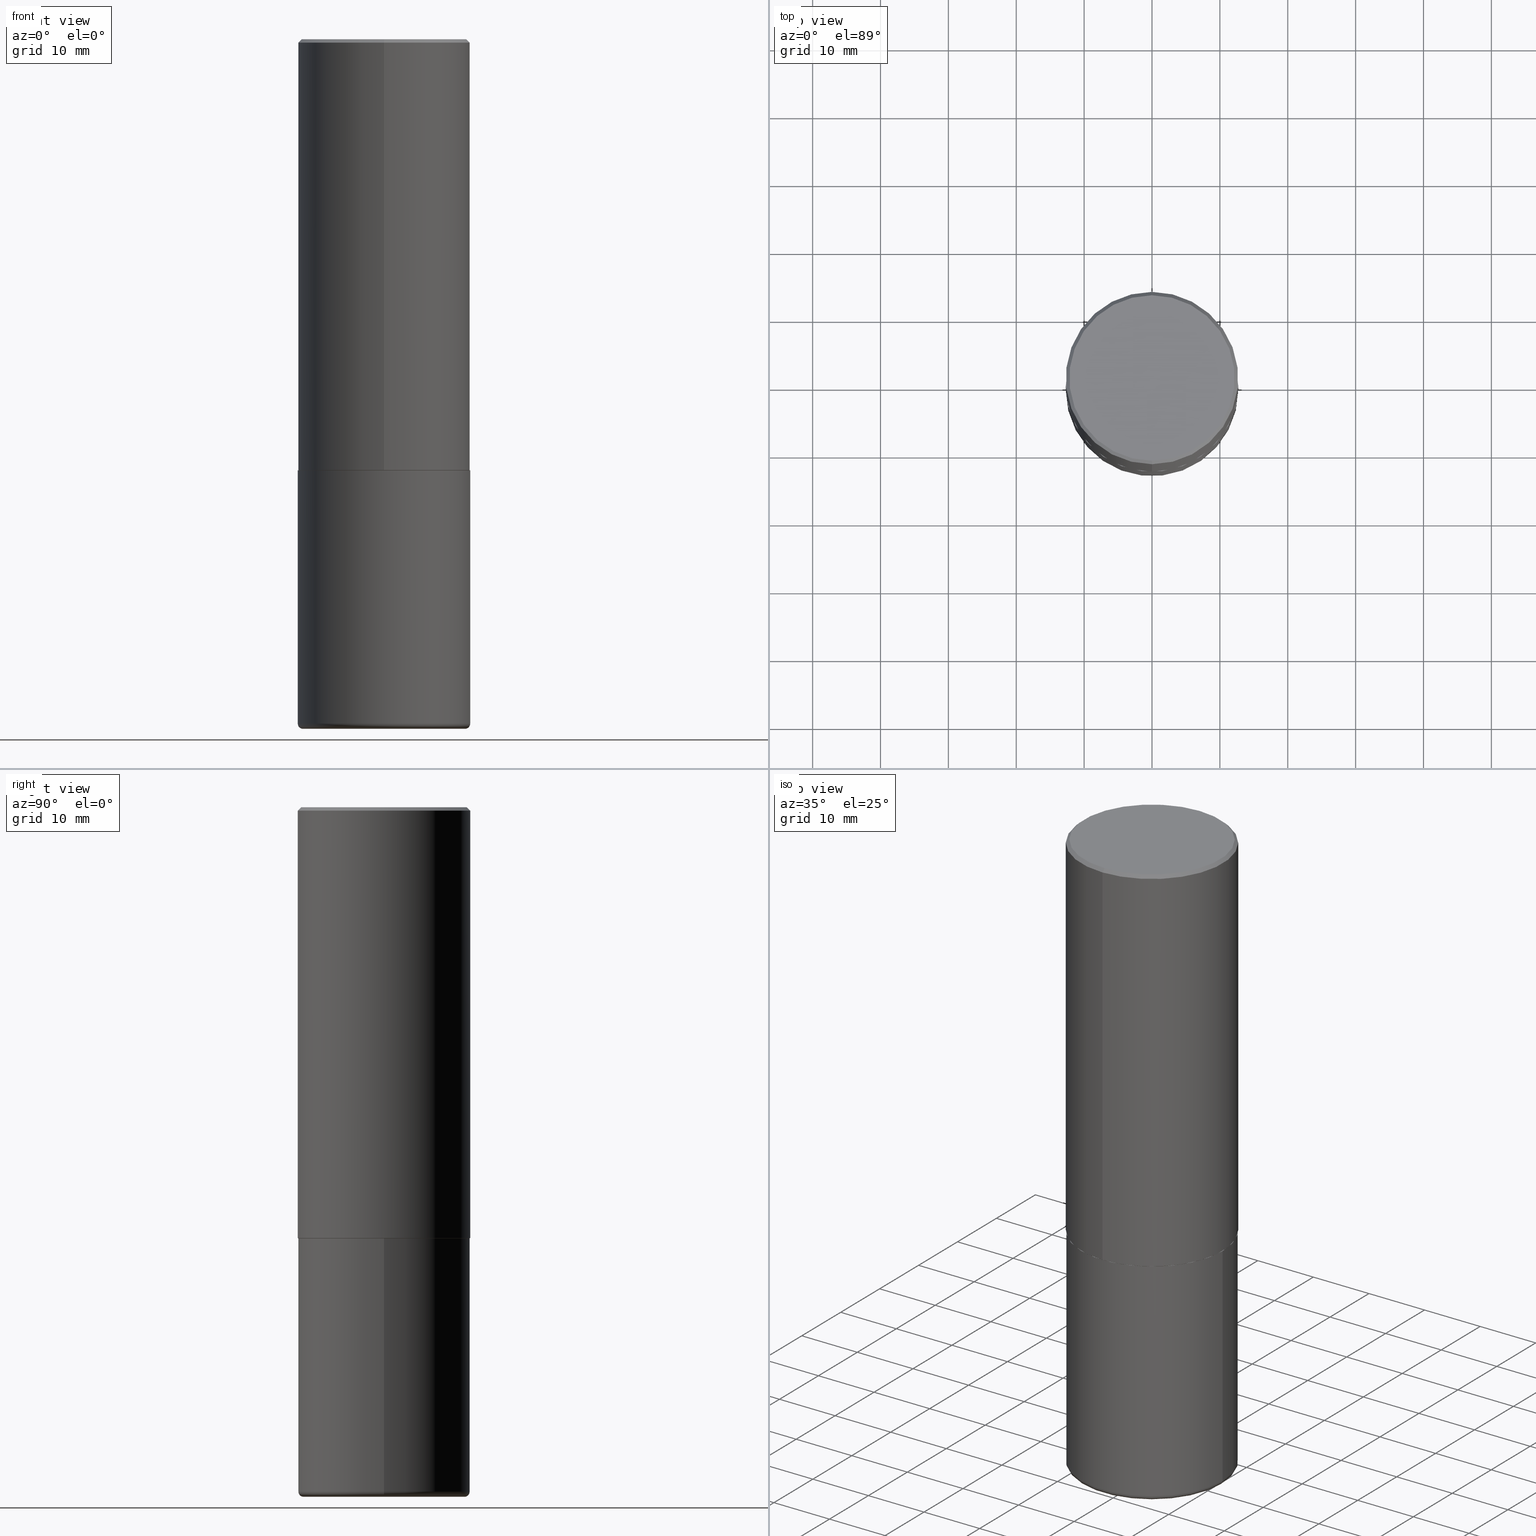
[diagram: canonical four-view strip — front | top / right | iso, engineering-drawing reading convention]
A machine part, canonical four-view strip (front | top / right | iso — engineering-drawing reading convention). The complete STEP part file that produces these views, byte-faithful:
ISO-10303-21;
HEADER;
FILE_DESCRIPTION (( 'STEP AP203' ),
    '1' );
FILE_NAME ('37219.STEP',
    '2024-03-01T22:08:32',
    ( '' ),
    ( '' ),
    'SwSTEP 2.0',
    'SolidWorks 2023',
    '' );
FILE_SCHEMA (( 'CONFIG_CONTROL_DESIGN' ));
ENDSEC;

DATA;
#1 = FACE_OUTER_BOUND ( 'NONE', #262, .T. ) ;
#2 = APPROVAL ( #285, 'UNSPECIFIED' ) ;
#3 = ORIENTED_EDGE ( 'NONE', *, *, #368, .F. ) ;
#4 = AXIS2_PLACEMENT_3D ( 'NONE', #40, #395, #136 ) ;
#5 = ORIENTED_EDGE ( 'NONE', *, *, #291, .T. ) ;
#6 = DIRECTION ( 'NONE',  ( -2.444946167972934928E-29, 3.492229786509738161E-15, 1.000000000000000000 ) ) ;
#7 = EDGE_CURVE ( 'NONE', #353, #360, #135, .T. ) ;
#8 = CARTESIAN_POINT ( 'NONE',  ( 6.109920473764365540E-29, -8.727082236487837614E-15, -2.499000000000000110 ) ) ;
#9 = FACE_OUTER_BOUND ( 'NONE', #218, .T. ) ;
#10 = DIRECTION ( 'NONE',  ( -2.445468806185136597E-29, 3.491481338843145583E-15, 1.000000000000000000 ) ) ;
#11 = DIRECTION ( 'NONE',  ( -2.444946167972934928E-29, 3.492229786509738161E-15, 1.000000000000000000 ) ) ;
#12 = CARTESIAN_POINT ( 'NONE',  ( -0.5000000000000000000, -1.030846723640678645E-14, -3.970000000000000195 ) ) ;
#13 = DIRECTION ( 'NONE',  ( -2.445468806185136597E-29, 3.491481338843145583E-15, 1.000000000000000000 ) ) ;
#14 = FACE_OUTER_BOUND ( 'NONE', #65, .T. ) ;
#15 = DIRECTION ( 'NONE',  ( -2.445468806185136597E-29, 3.491481338843145583E-15, 1.000000000000000000 ) ) ;
#16 = DIRECTION ( 'NONE',  ( -2.445468806185136597E-29, 3.491481338843145583E-15, 1.000000000000000000 ) ) ;
#17 = AXIS2_PLACEMENT_3D ( 'NONE', #8, #401, #238 ) ;
#18 =( NAMED_UNIT ( * ) SI_UNIT ( $, .STERADIAN. ) SOLID_ANGLE_UNIT ( ) );
#19 = CARTESIAN_POINT ( 'NONE',  ( -0.5000000000000000000, -7.742228452357075234E-15, -2.500000000000000000 ) ) ;
#20 = DATE_AND_TIME ( #249, #181 ) ;
#21 = EDGE_CURVE ( 'NONE', #360, #353, #396, .T. ) ;
#22 = FACE_OUTER_BOUND ( 'NONE', #355, .T. ) ;
#23 = EDGE_LOOP ( 'NONE', ( #246, #321, #37, #99 ) ) ;
#24 = SHAPE_DEFINITION_REPRESENTATION ( #25, #145 ) ;
#25 = PRODUCT_DEFINITION_SHAPE ( 'NONE', 'NONE',  #339 ) ;
#26 = APPROVAL_ROLE ( '' ) ;
#27 = CC_DESIGN_PERSON_AND_ORGANIZATION_ASSIGNMENT ( #316, #154, ( #329 ) ) ;
#28 = CALENDAR_DATE ( 2024, 1, 3 ) ;
#29 = ORIENTED_EDGE ( 'NONE', *, *, #377, .T. ) ;
#30 = DATE_TIME_ROLE ( 'classification_date' ) ;
#31 = ADVANCED_FACE ( 'NONE', ( #1 ), #129, .T. ) ;
#32 = ORIENTED_EDGE ( 'NONE', *, *, #286, .F. ) ;
#33 = VECTOR ( 'NONE', #210, 39.37007874015748143 ) ;
#34 = ORIENTED_EDGE ( 'NONE', *, *, #21, .T. ) ;
#35 = VERTEX_POINT ( 'NONE', #302 ) ;
#36 = ORIENTED_EDGE ( 'NONE', *, *, #303, .T. ) ;
#37 = ORIENTED_EDGE ( 'NONE', *, *, #283, .T. ) ;
#38 = AXIS2_PLACEMENT_3D ( 'NONE', #167, #398, #175 ) ;
#39 = DIRECTION ( 'NONE',  ( 1.000000000000000000, -6.982962677686266711E-15, 4.883557194083113462E-29 ) ) ;
#40 = CARTESIAN_POINT ( 'NONE',  ( -5.540013713897219376E-45, 7.913058030796886371E-31, 2.265904168552862416E-16 ) ) ;
#41 = APPLICATION_PROTOCOL_DEFINITION ( 'international standard', 'config_control_design', 1994, #149 ) ;
#42 = CC_DESIGN_PERSON_AND_ORGANIZATION_ASSIGNMENT ( #216, #95, ( #73 ) ) ;
#43 = CARTESIAN_POINT ( 'NONE',  ( 9.781875224740546387E-29, -1.396592535537258233E-14, -4.000000000000000000 ) ) ;
#44 = CONICAL_SURFACE ( 'NONE', #247, 0.5000000000000000000, 0.7853981633974449483 ) ;
#45 = CIRCLE ( 'NONE', #391, 0.4989999999999999991 ) ;
#46 = VECTOR ( 'NONE', #336, 39.37007874015748143 ) ;
#47 = DIRECTION ( 'NONE',  ( 1.000000000000000000, -6.982962677686267499E-15, 0.000000000000000000 ) ) ;
#48 = DIRECTION ( 'NONE',  ( -6.982962677686265922E-15, -1.000000000000000000, 3.284787166730577015E-15 ) ) ;
#49 = CARTESIAN_POINT ( 'NONE',  ( 6.113672015462842613E-29, -8.728703347107864943E-15, -2.500000000000000000 ) ) ;
#50 = MANIFOLD_SOLID_BREP ( 'Body-Move/Copy2[2]', #203 ) ;
#51 = DIRECTION ( 'NONE',  ( 6.982962677686265922E-15, 1.000000000000000000, -3.491643216902136408E-15 ) ) ;
#52 = CARTESIAN_POINT ( 'NONE',  ( 0.000000000000000000, 0.000000000000000000, 0.000000000000000000 ) ) ;
#53 = DIRECTION ( 'NONE',  ( -6.982962677686265922E-15, -1.000000000000000000, 3.284787166730577015E-15 ) ) ;
#54 = ORIENTED_EDGE ( 'NONE', *, *, #252, .F. ) ;
#55 = AXIS2_PLACEMENT_3D ( 'NONE', #52, #15, #407 ) ;
#56 = DATE_AND_TIME ( #148, #386 ) ;
#57 = CARTESIAN_POINT ( 'NONE',  ( 0.000000000000000000, 0.000000000000000000, 0.000000000000000000 ) ) ;
#58 = ORIENTED_EDGE ( 'NONE', *, *, #168, .T. ) ;
#59 = ADVANCED_FACE ( 'NONE', ( #205 ), #88, .T. ) ;
#60 = PERSON_AND_ORGANIZATION ( #272, #89 ) ;
#61 = AXIS2_PLACEMENT_3D ( 'NONE', #389, #165, #64 ) ;
#62 = EDGE_CURVE ( 'NONE', #96, #360, #267, .T. ) ;
#63 = PERSON_AND_ORGANIZATION ( #272, #89 ) ;
#64 = DIRECTION ( 'NONE',  ( -1.000000000000000000, 6.982962677686265922E-15, -4.876176775795935793E-29 ) ) ;
#65 = EDGE_LOOP ( 'NONE', ( #195, #70 ) ) ;
#66 = EDGE_CURVE ( 'NONE', #93, #96, #228, .T. ) ;
#67 = VECTOR ( 'NONE', #117, 39.37007874015748143 ) ;
#68 = ORIENTED_EDGE ( 'NONE', *, *, #71, .F. ) ;
#69 = ORIENTED_EDGE ( 'NONE', *, *, #324, .F. ) ;
#70 = ORIENTED_EDGE ( 'NONE', *, *, #324, .T. ) ;
#71 = EDGE_CURVE ( 'NONE', #93, #353, #169, .T. ) ;
#72 = CARTESIAN_POINT ( 'NONE',  ( 6.112365419932337880E-29, -8.730574466274345798E-15, -2.500000000000000000 ) ) ;
#73 = SECURITY_CLASSIFICATION ( '', '', #279 ) ;
#74 = DIRECTION ( 'NONE',  ( 7.105427357601001859E-15, 1.000000000000000000, -3.491481338843145583E-15 ) ) ;
#75 = DIRECTION ( 'NONE',  ( -2.445468806185136877E-29, 3.491481338843145188E-15, 1.000000000000000000 ) ) ;
#76 = CARTESIAN_POINT ( 'NONE',  ( -3.430248998885764992E-15, -0.5000000000000001110, -0.01999999999999835937 ) ) ;
#77 = DIRECTION ( 'NONE',  ( -2.444946167972934928E-29, 3.492229786509738161E-15, 1.000000000000000000 ) ) ;
#78 = CARTESIAN_POINT ( 'NONE',  ( 3.545608251442960663E-15, 0.4989999999999912283, -2.500000000000001776 ) ) ;
#79 =( GEOMETRIC_REPRESENTATION_CONTEXT ( 3 ) GLOBAL_UNCERTAINTY_ASSIGNED_CONTEXT ( ( #383 ) ) GLOBAL_UNIT_ASSIGNED_CONTEXT ( ( #179, #171, #18 ) ) REPRESENTATION_CONTEXT ( 'NONE', 'WORKASPACE' ) );
#80 = FACE_OUTER_BOUND ( 'NONE', #294, .T. ) ;
#81 = DIRECTION ( 'NONE',  ( 1.000000000000000000, -6.982962677686265133E-15, 0.000000000000000000 ) ) ;
#82 = CARTESIAN_POINT ( 'NONE',  ( 9.708511160554992872E-29, -1.386118091520728738E-14, -3.970000000000000195 ) ) ;
#83 = CARTESIAN_POINT ( 'NONE',  ( -3.484498376165385415E-15, -0.4990000000000087144, -2.499999999999998668 ) ) ;
#84 = EDGE_CURVE ( 'NONE', #322, #184, #45, .T. ) ;
#85 = DIRECTION ( 'NONE',  ( 1.000000000000000000, 0.000000000000000000, 0.000000000000000000 ) ) ;
#86 = CARTESIAN_POINT ( 'NONE',  ( -3.491481338843073796E-15, -0.5000000000000089928, -2.498999999999998778 ) ) ;
#87 = ORIENTED_EDGE ( 'NONE', *, *, #283, .F. ) ;
#88 = CONICAL_SURFACE ( 'NONE', #288, 0.5000000000000000000, 0.7853981633974449483 ) ;
#89 = ORGANIZATION ( 'UNSPECIFIED', 'UNSPECIFIED', '' ) ;
#90 = COORDINATED_UNIVERSAL_TIME_OFFSET ( 5, 0, .BEHIND. ) ;
#91 = CARTESIAN_POINT ( 'NONE',  ( 6.112365419932337880E-29, -8.730574466274345798E-15, -2.500000000000000000 ) ) ;
#92 = APPROVAL_STATUS ( 'not_yet_approved' ) ;
#93 = VERTEX_POINT ( 'NONE', #106 ) ;
#94 = CIRCLE ( 'NONE', #186, 0.4699999999999999734 ) ;
#95 = PERSON_AND_ORGANIZATION_ROLE ( 'classification_officer' ) ;
#96 = VERTEX_POINT ( 'NONE', #270 ) ;
#97 = ORIENTED_EDGE ( 'NONE', *, *, #138, .T. ) ;
#98 = EDGE_CURVE ( 'NONE', #128, #287, #199, .T. ) ;
#99 = ORIENTED_EDGE ( 'NONE', *, *, #138, .F. ) ;
#100 = EDGE_CURVE ( 'NONE', #192, #296, #94, .T. ) ;
#101 = VECTOR ( 'NONE', #408, 39.37007874015748143 ) ;
#102 = ORIENTED_EDGE ( 'NONE', *, *, #84, .T. ) ;
#103 = DIRECTION ( 'NONE',  ( -6.982962677686265922E-15, -1.000000000000000000, 3.491643216902136408E-15 ) ) ;
#104 = FACE_OUTER_BOUND ( 'NONE', #130, .T. ) ;
#105 = VECTOR ( 'NONE', #367, 39.37007874015748143 ) ;
#106 = CARTESIAN_POINT ( 'NONE',  ( -3.361644018908049661E-15, -0.4799999999999998157, 1.902860714379959855E-15 ) ) ;
#107 = AXIS2_PLACEMENT_3D ( 'NONE', #341, #150, #280 ) ;
#108 = CARTESIAN_POINT ( 'NONE',  ( 9.708511160554992872E-29, -1.386118091520728738E-14, -3.970000000000000195 ) ) ;
#109 = PLANE ( 'NONE',  #160 ) ;
#110 = DIRECTION ( 'NONE',  ( 2.444946167972934928E-29, -3.492229786509738161E-15, -1.000000000000000000 ) ) ;
#111 = PLANE ( 'NONE',  #38 ) ;
#112 = CARTESIAN_POINT ( 'NONE',  ( -0.5000000000000000000, 3.552713678800500929E-15, -2.459467545127452891E-29 ) ) ;
#113 = AXIS2_PLACEMENT_3D ( 'NONE', #304, #13, #47 ) ;
#114 = CARTESIAN_POINT ( 'NONE',  ( 6.109920473764365540E-29, -8.727082236487837614E-15, -2.499000000000000110 ) ) ;
#115 = FACE_OUTER_BOUND ( 'NONE', #224, .T. ) ;
#116 = APPROVAL_STATUS ( 'not_yet_approved' ) ;
#117 = DIRECTION ( 'NONE',  ( -4.937700262165728178E-15, -0.7071067811867141062, 0.7071067811863809283 ) ) ;
#118 = FACE_OUTER_BOUND ( 'NONE', #133, .T. ) ;
#119 = VERTEX_POINT ( 'NONE', #375 ) ;
#120 = CC_DESIGN_PERSON_AND_ORGANIZATION_ASSIGNMENT ( #156, #182, ( #329 ) ) ;
#121 = AXIS2_PLACEMENT_3D ( 'NONE', #231, #361, #158 ) ;
#122 = CIRCLE ( 'NONE', #131, 0.5000000000000000000 ) ;
#123 = DATE_TIME_ROLE ( 'creation_date' ) ;
#124 = ORIENTED_EDGE ( 'NONE', *, *, #100, .F. ) ;
#125 = CALENDAR_DATE ( 2024, 1, 3 ) ;
#126 = VERTEX_POINT ( 'NONE', #298 ) ;
#127 = CIRCLE ( 'NONE', #323, 0.5000000000000002220 ) ;
#128 = VERTEX_POINT ( 'NONE', #12 ) ;
#129 = PLANE ( 'NONE',  #61 ) ;
#130 = EDGE_LOOP ( 'NONE', ( #36, #5, #190, #54 ) ) ;
#131 = AXIS2_PLACEMENT_3D ( 'NONE', #49, #237, #277 ) ;
#132 = ORIENTED_EDGE ( 'NONE', *, *, #243, .F. ) ;
#133 = EDGE_LOOP ( 'NONE', ( #350, #97, #357, #69 ) ) ;
#134 = DIRECTION ( 'NONE',  ( 1.000000000000000000, -6.982962677686269077E-15, 0.000000000000000000 ) ) ;
#135 = CIRCLE ( 'NONE', #151, 0.5000000000000000000 ) ;
#136 = DIRECTION ( 'NONE',  ( -6.982962677686265922E-15, -1.000000000000000000, 3.492229786509738161E-15 ) ) ;
#137 = CC_DESIGN_SECURITY_CLASSIFICATION ( #73, ( #329 ) ) ;
#138 = EDGE_CURVE ( 'NONE', #128, #126, #221, .T. ) ;
#139 = FACE_OUTER_BOUND ( 'NONE', #290, .T. ) ;
#140 = CARTESIAN_POINT ( 'NONE',  ( 6.112365419932337880E-29, -8.730574466274345798E-15, -2.500000000000000000 ) ) ;
#141 = CARTESIAN_POINT ( 'NONE',  ( -0.4699999999999999734, -1.052163005713481828E-14, -3.970000000000000195 ) ) ;
#142 = DIRECTION ( 'NONE',  ( -1.000000000000000000, 6.982962677686265922E-15, -4.876176775795935793E-29 ) ) ;
#143 = DIRECTION ( 'NONE',  ( 6.982962677686265922E-15, 1.000000000000000000, -3.491643216902136408E-15 ) ) ;
#144 = AXIS2_PLACEMENT_3D ( 'NONE', #354, #212, #85 ) ;
#145 = ADVANCED_BREP_SHAPE_REPRESENTATION ( '37219', ( #191, #50, #144 ), #79 ) ;
#146 = ADVANCED_FACE ( 'NONE', ( #307 ), #197, .T. ) ;
#147 = LINE ( 'NONE', #406, #101 ) ;
#148 = CALENDAR_DATE ( 2024, 1, 3 ) ;
#149 = APPLICATION_CONTEXT ( 'configuration controlled 3d designs of mechanical parts and assemblies' ) ;
#150 = DIRECTION ( 'NONE',  ( -6.982962677686266711E-15, -1.000000000000000000, 3.491481338843145583E-15 ) ) ;
#151 = AXIS2_PLACEMENT_3D ( 'NONE', #194, #6, #103 ) ;
#152 = LOCAL_TIME ( 17, 8, 32.00000000000000000, #223 ) ;
#153 = COORDINATED_UNIVERSAL_TIME_OFFSET ( 5, 0, .BEHIND. ) ;
#154 = PERSON_AND_ORGANIZATION_ROLE ( 'design_supplier' ) ;
#155 = ORIENTED_EDGE ( 'NONE', *, *, #368, .T. ) ;
#156 = PERSON_AND_ORGANIZATION ( #272, #89 ) ;
#157 = ADVANCED_FACE ( 'NONE', ( #207 ), #381, .T. ) ;
#158 = DIRECTION ( 'NONE',  ( -6.982962677686265922E-15, -1.000000000000000000, 3.491643216902136408E-15 ) ) ;
#159 = AXIS2_PLACEMENT_3D ( 'NONE', #108, #16, #81 ) ;
#160 = AXIS2_PLACEMENT_3D ( 'NONE', #235, #269, #300 ) ;
#161 = ORIENTED_EDGE ( 'NONE', *, *, #291, .F. ) ;
#162 = ORIENTED_EDGE ( 'NONE', *, *, #21, .F. ) ;
#163 = ORIENTED_EDGE ( 'NONE', *, *, #330, .F. ) ;
#164 = CC_DESIGN_APPROVAL ( #2, ( #339 ) ) ;
#165 = DIRECTION ( 'NONE',  ( 2.438088387897960049E-29, -3.491481338843145188E-15, -1.000000000000000000 ) ) ;
#166 = CARTESIAN_POINT ( 'NONE',  ( 4.889892335945895815E-31, -6.984459573019513448E-17, -0.02000000000000010797 ) ) ;
#167 = CARTESIAN_POINT ( 'NONE',  ( 3.351822085289406364E-15, 0.4799999999999998157, -1.562975089097030468E-15 ) ) ;
#168 = EDGE_CURVE ( 'NONE', #35, #256, #264, .T. ) ;
#169 = LINE ( 'NONE', #331, #373 ) ;
#170 = APPLICATION_CONTEXT ( 'configuration controlled 3d designs of mechanical parts and assemblies' ) ;
#171 =( NAMED_UNIT ( * ) PLANE_ANGLE_UNIT ( ) SI_UNIT ( $, .RADIAN. ) );
#172 = CARTESIAN_POINT ( 'NONE',  ( 9.708511160554992872E-29, -1.386118091520728738E-14, -3.970000000000000195 ) ) ;
#173 = LOCAL_TIME ( 17, 8, 32.00000000000000000, #346 ) ;
#174 = EDGE_CURVE ( 'NONE', #119, #287, #358, .T. ) ;
#175 = DIRECTION ( 'NONE',  ( 6.982962677686265922E-15, 1.000000000000000000, -3.492229786509738161E-15 ) ) ;
#176 = DIRECTION ( 'NONE',  ( -6.982962677686265922E-15, -1.000000000000000000, 3.284787166730577015E-15 ) ) ;
#177 = LENGTH_MEASURE_WITH_UNIT ( LENGTH_MEASURE( 0.02539999999999999897 ), #206 );
#178 = PLANE ( 'NONE',  #281 ) ;
#179 =( CONVERSION_BASED_UNIT ( 'INCH', #177 ) LENGTH_UNIT ( ) NAMED_UNIT ( #289 ) );
#180 = DIRECTION ( 'NONE',  ( -2.444946167972934928E-29, 3.492229786509738161E-15, 1.000000000000000000 ) ) ;
#181 = LOCAL_TIME ( 17, 8, 32.00000000000000000, #153 ) ;
#182 = PERSON_AND_ORGANIZATION_ROLE ( 'creator' ) ;
#183 = LINE ( 'NONE', #409, #33 ) ;
#184 = VERTEX_POINT ( 'NONE', #394 ) ;
#185 = PERSON_AND_ORGANIZATION_ROLE ( 'creator' ) ;
#186 = AXIS2_PLACEMENT_3D ( 'NONE', #43, #305, #399 ) ;
#187 = CALENDAR_DATE ( 2024, 1, 3 ) ;
#188 = ADVANCED_FACE ( 'NONE', ( #104 ), #333, .T. ) ;
#189 = PERSON_AND_ORGANIZATION_ROLE ( 'design_owner' ) ;
#190 = ORIENTED_EDGE ( 'NONE', *, *, #7, .F. ) ;
#191 = MANIFOLD_SOLID_BREP ( 'Body-Move/Copy2[1]', #299 ) ;
#192 = VERTEX_POINT ( 'NONE', #338 ) ;
#193 = APPROVAL ( #116, 'UNSPECIFIED' ) ;
#194 = CARTESIAN_POINT ( 'NONE',  ( 4.889892335945895815E-31, -6.984459573019513448E-17, -0.02000000000000010797 ) ) ;
#195 = ORIENTED_EDGE ( 'NONE', *, *, #174, .T. ) ;
#196 = ORIENTED_EDGE ( 'NONE', *, *, #252, .T. ) ;
#197 = TOROIDAL_SURFACE ( 'NONE', #328, 0.4699999999999999734, 0.03000000000000002318 ) ;
#198 = CONICAL_SURFACE ( 'NONE', #222, 0.4989999999999999991, 0.7853981633976873100 ) ;
#199 = LINE ( 'NONE', #112, #334 ) ;
#200 = FACE_OUTER_BOUND ( 'NONE', #325, .T. ) ;
#201 = DIRECTION ( 'NONE',  ( -2.445468806185136597E-29, 3.491481338843145583E-15, 1.000000000000000000 ) ) ;
#202 = CARTESIAN_POINT ( 'NONE',  ( 9.708511160554992872E-29, -1.386118091520728738E-14, -3.970000000000000195 ) ) ;
#203 = CLOSED_SHELL ( 'NONE', ( #251, #188, #59, #208, #248, #157, #309, #314 ) ) ;
#204 = CIRCLE ( 'NONE', #229, 0.4989999999999999991 ) ;
#205 = FACE_OUTER_BOUND ( 'NONE', #255, .T. ) ;
#206 =( LENGTH_UNIT ( ) NAMED_UNIT ( * ) SI_UNIT ( $, .METRE. ) );
#207 = FACE_OUTER_BOUND ( 'NONE', #345, .T. ) ;
#208 = ADVANCED_FACE ( 'NONE', ( #200 ), #44, .T. ) ;
#209 = DIRECTION ( 'NONE',  ( -1.000000000000000000, 7.105427357600985293E-15, 0.000000000000000000 ) ) ;
#210 = DIRECTION ( 'NONE',  ( -2.444946167972934928E-29, 3.492229786509738161E-15, 1.000000000000000000 ) ) ;
#211 = ORIENTED_EDGE ( 'NONE', *, *, #84, .F. ) ;
#212 = DIRECTION ( 'NONE',  ( 0.000000000000000000, 0.000000000000000000, 1.000000000000000000 ) ) ;
#213 = DIRECTION ( 'NONE',  ( -2.444946167972934928E-29, 3.492229786509738161E-15, 1.000000000000000000 ) ) ;
#214 = ORIENTED_EDGE ( 'NONE', *, *, #62, .T. ) ;
#215 = CIRCLE ( 'NONE', #266, 0.03000000000000002318 ) ;
#216 = PERSON_AND_ORGANIZATION ( #272, #89 ) ;
#217 = PERSON_AND_ORGANIZATION ( #272, #89 ) ;
#218 = EDGE_LOOP ( 'NONE', ( #388, #326 ) ) ;
#219 = COORDINATED_UNIVERSAL_TIME_OFFSET ( 5, 0, .BEHIND. ) ;
#220 = PRODUCT_RELATED_PRODUCT_CATEGORY ( 'detail', '', ( #312 ) ) ;
#221 = CIRCLE ( 'NONE', #159, 0.5000000000000001110 ) ;
#222 = AXIS2_PLACEMENT_3D ( 'NONE', #382, #213, #53 ) ;
#223 = COORDINATED_UNIVERSAL_TIME_OFFSET ( 5, 0, .BEHIND. ) ;
#224 = EDGE_LOOP ( 'NONE', ( #161, #58, #196, #162 ) ) ;
#225 = ORIENTED_EDGE ( 'NONE', *, *, #66, .F. ) ;
#226 = ADVANCED_FACE ( 'NONE', ( #14 ), #178, .F. ) ;
#227 = ORIENTED_EDGE ( 'NONE', *, *, #7, .T. ) ;
#228 = CIRCLE ( 'NONE', #4, 0.4799999999999998157 ) ;
#229 = AXIS2_PLACEMENT_3D ( 'NONE', #91, #180, #276 ) ;
#230 = ORIENTED_EDGE ( 'NONE', *, *, #174, .F. ) ;
#231 = CARTESIAN_POINT ( 'NONE',  ( 4.889892335945895815E-31, -6.984459573019513448E-17, -0.02000000000000010797 ) ) ;
#232 = CARTESIAN_POINT ( 'NONE',  ( 0.000000000000000000, 0.000000000000000000, 0.000000000000000000 ) ) ;
#233 = DIRECTION ( 'NONE',  ( 2.438088387897960049E-29, -3.491481338843145188E-15, -1.000000000000000000 ) ) ;
#234 = EDGE_CURVE ( 'NONE', #126, #119, #332, .T. ) ;
#235 = CARTESIAN_POINT ( 'NONE',  ( 6.112365419932337880E-29, -8.730574466274345798E-15, -2.500000000000000000 ) ) ;
#236 = CARTESIAN_POINT ( 'NONE',  ( 3.491481338843133355E-15, 0.4999999999999999445, -0.02000000000000185310 ) ) ;
#237 = DIRECTION ( 'NONE',  ( -2.445468806185136597E-29, 3.491481338843145583E-15, 1.000000000000000000 ) ) ;
#238 = DIRECTION ( 'NONE',  ( -6.982962677686266711E-15, -1.000000000000000000, 3.278217592397114284E-15 ) ) ;
#239 = DIRECTION ( 'NONE',  ( -6.982962677686265922E-15, -1.000000000000000000, 3.492229786509738161E-15 ) ) ;
#240 = VECTOR ( 'NONE', #244, 39.37007874015748143 ) ;
#241 = CARTESIAN_POINT ( 'NONE',  ( 4.889892335945895815E-31, -6.984459573019513448E-17, -0.02000000000000010797 ) ) ;
#242 = DIRECTION ( 'NONE',  ( -2.445468806185136597E-29, 3.491481338843145583E-15, 1.000000000000000000 ) ) ;
#243 = EDGE_CURVE ( 'NONE', #322, #256, #376, .T. ) ;
#244 = DIRECTION ( 'NONE',  ( -2.445468806185136877E-29, 3.491481338843145188E-15, 1.000000000000000000 ) ) ;
#245 = DIRECTION ( 'NONE',  ( -6.982962677686265922E-15, -1.000000000000000000, 3.492229786509738161E-15 ) ) ;
#246 = ORIENTED_EDGE ( 'NONE', *, *, #377, .F. ) ;
#247 = AXIS2_PLACEMENT_3D ( 'NONE', #166, #297, #51 ) ;
#248 = ADVANCED_FACE ( 'NONE', ( #115 ), #278, .T. ) ;
#249 = CALENDAR_DATE ( 2024, 1, 3 ) ;
#250 = APPROVAL_ROLE ( '' ) ;
#251 = ADVANCED_FACE ( 'NONE', ( #22 ), #198, .T. ) ;
#252 = EDGE_CURVE ( 'NONE', #256, #353, #183, .T. ) ;
#253 = AXIS2_PLACEMENT_3D ( 'NONE', #140, #77, #176 ) ;
#254 = CC_DESIGN_APPROVAL ( #193, ( #329 ) ) ;
#255 = EDGE_LOOP ( 'NONE', ( #225, #418, #227, #416 ) ) ;
#256 = VERTEX_POINT ( 'NONE', #86 ) ;
#257 = ORIENTED_EDGE ( 'NONE', *, *, #363, .F. ) ;
#258 = CIRCLE ( 'NONE', #343, 0.5000000000000001110 ) ;
#259 = ORIENTED_EDGE ( 'NONE', *, *, #98, .T. ) ;
#260 = CC_DESIGN_PERSON_AND_ORGANIZATION_ASSIGNMENT ( #217, #189, ( #312 ) ) ;
#261 = ADVANCED_FACE ( 'NONE', ( #118 ), #378, .T. ) ;
#262 = EDGE_LOOP ( 'NONE', ( #3, #124 ) ) ;
#263 = CARTESIAN_POINT ( 'NONE',  ( 6.113672015462842613E-29, -8.728703347107864943E-15, -2.500000000000000000 ) ) ;
#264 = CIRCLE ( 'NONE', #17, 0.5000000000000002220 ) ;
#265 = CARTESIAN_POINT ( 'NONE',  ( 0.4699999999999999734, -1.724791781388512737E-14, -4.000000000000000000 ) ) ;
#266 = AXIS2_PLACEMENT_3D ( 'NONE', #141, #74, #209 ) ;
#267 = LINE ( 'NONE', #236, #105 ) ;
#268 = CC_DESIGN_PERSON_AND_ORGANIZATION_ASSIGNMENT ( #63, #185, ( #339 ) ) ;
#269 = DIRECTION ( 'NONE',  ( -2.444946167972934647E-29, 3.492229786509738161E-15, 1.000000000000000000 ) ) ;
#270 = CARTESIAN_POINT ( 'NONE',  ( 3.421651712066270057E-15, 0.4799999999999998157, -1.449679880669387470E-15 ) ) ;
#271 = FACE_OUTER_BOUND ( 'NONE', #319, .T. ) ;
#272 = PERSON ( 'UNSPECIFIED', 'UNSPECIFIED', 'UNSPECIFIED', ('UNSPECIFIED'), ('UNSPECIFIED'), ('UNSPECIFIED') ) ;
#273 = CARTESIAN_POINT ( 'NONE',  ( 0.5000000000000000000, -3.491481338843133355E-15, 2.438088387897967896E-29 ) ) ;
#274 = DIRECTION ( 'NONE',  ( -2.445468806185136597E-29, 3.491481338843145583E-15, 1.000000000000000000 ) ) ;
#275 = TOROIDAL_SURFACE ( 'NONE', #295, 0.4699999999999999734, 0.03000000000000002318 ) ;
#276 = DIRECTION ( 'NONE',  ( -6.982962677686265922E-15, -1.000000000000000000, 3.284787166730577015E-15 ) ) ;
#277 = DIRECTION ( 'NONE',  ( 1.000000000000000000, -6.982962677686269077E-15, 0.000000000000000000 ) ) ;
#278 = CYLINDRICAL_SURFACE ( 'NONE', #318, 0.5000000000000001110 ) ;
#279 = SECURITY_CLASSIFICATION_LEVEL ( 'unclassified' ) ;
#280 = DIRECTION ( 'NONE',  ( 1.000000000000000000, -6.982962677686262766E-15, 0.000000000000000000 ) ) ;
#281 = AXIS2_PLACEMENT_3D ( 'NONE', #263, #233, #142 ) ;
#282 = DATE_AND_TIME ( #187, #335 ) ;
#283 = EDGE_CURVE ( 'NONE', #296, #126, #310, .T. ) ;
#284 = ORIENTED_EDGE ( 'NONE', *, *, #330, .T. ) ;
#285 = APPROVAL_STATUS ( 'not_yet_approved' ) ;
#286 = EDGE_CURVE ( 'NONE', #184, #322, #204, .T. ) ;
#287 = VERTEX_POINT ( 'NONE', #19 ) ;
#288 = AXIS2_PLACEMENT_3D ( 'NONE', #241, #110, #143 ) ;
#289 = DIMENSIONAL_EXPONENTS ( 1.000000000000000000, 0.000000000000000000, 0.000000000000000000, 0.000000000000000000, 0.000000000000000000, 0.000000000000000000, 0.000000000000000000 ) ;
#290 = EDGE_LOOP ( 'NONE', ( #211, #32 ) ) ;
#291 = EDGE_CURVE ( 'NONE', #35, #360, #147, .T. ) ;
#292 = ORIENTED_EDGE ( 'NONE', *, *, #243, .T. ) ;
#293 = ADVANCED_FACE ( 'NONE', ( #80 ), #275, .T. ) ;
#294 = EDGE_LOOP ( 'NONE', ( #155, #29, #163, #87 ) ) ;
#295 = AXIS2_PLACEMENT_3D ( 'NONE', #82, #274, #402 ) ;
#296 = VERTEX_POINT ( 'NONE', #265 ) ;
#297 = DIRECTION ( 'NONE',  ( 2.444946167972934928E-29, -3.492229786509738161E-15, -1.000000000000000000 ) ) ;
#298 = CARTESIAN_POINT ( 'NONE',  ( 0.5000000000000000000, -1.735266225405042074E-14, -3.970000000000000195 ) ) ;
#299 = CLOSED_SHELL ( 'NONE', ( #379, #293, #226, #261, #146, #31 ) ) ;
#300 = DIRECTION ( 'NONE',  ( -6.982962677686265922E-15, -1.000000000000000000, 3.492229786509738161E-15 ) ) ;
#301 = AXIS2_PLACEMENT_3D ( 'NONE', #344, #242, #315 ) ;
#302 = CARTESIAN_POINT ( 'NONE',  ( 3.552713678800533273E-15, 0.4999999999999916178, -2.499000000000001886 ) ) ;
#303 = EDGE_CURVE ( 'NONE', #256, #35, #127, .T. ) ;
#304 = CARTESIAN_POINT ( 'NONE',  ( 9.781875224740546387E-29, -1.396592535537258233E-14, -4.000000000000000000 ) ) ;
#305 = DIRECTION ( 'NONE',  ( -2.445468806185136597E-29, 3.491481338843145583E-15, 1.000000000000000000 ) ) ;
#306 = DIRECTION ( 'NONE',  ( -2.445468806185136597E-29, 3.491481338843145583E-15, 1.000000000000000000 ) ) ;
#307 = FACE_OUTER_BOUND ( 'NONE', #23, .T. ) ;
#308 = CYLINDRICAL_SURFACE ( 'NONE', #55, 0.5000000000000000000 ) ;
#309 = ADVANCED_FACE ( 'NONE', ( #139 ), #109, .F. ) ;
#310 = CIRCLE ( 'NONE', #107, 0.03000000000000002318 ) ;
#311 = DIRECTION ( 'NONE',  ( -2.444946167972934928E-29, 3.492229786509738161E-15, 1.000000000000000000 ) ) ;
#312 = PRODUCT ( '37219', '37219', '', ( #385 ) ) ;
#313 = APPLICATION_PROTOCOL_DEFINITION ( 'international standard', 'config_control_design', 1994, #170 ) ;
#314 = ADVANCED_FACE ( 'NONE', ( #9 ), #111, .F. ) ;
#315 = DIRECTION ( 'NONE',  ( 1.000000000000000000, -6.982962677686266711E-15, 4.876176775795935793E-29 ) ) ;
#316 = PERSON_AND_ORGANIZATION ( #272, #89 ) ;
#317 = APPROVAL_ROLE ( '' ) ;
#318 = AXIS2_PLACEMENT_3D ( 'NONE', #57, #311, #245 ) ;
#319 = EDGE_LOOP ( 'NONE', ( #284, #259, #230, #387 ) ) ;
#320 = PERSON_AND_ORGANIZATION ( #272, #89 ) ;
#321 = ORIENTED_EDGE ( 'NONE', *, *, #100, .T. ) ;
#322 = VERTEX_POINT ( 'NONE', #369 ) ;
#323 = AXIS2_PLACEMENT_3D ( 'NONE', #114, #11, #340 ) ;
#324 = EDGE_CURVE ( 'NONE', #287, #119, #122, .T. ) ;
#325 = EDGE_LOOP ( 'NONE', ( #68, #327, #214, #34 ) ) ;
#326 = ORIENTED_EDGE ( 'NONE', *, *, #66, .T. ) ;
#327 = ORIENTED_EDGE ( 'NONE', *, *, #415, .F. ) ;
#328 = AXIS2_PLACEMENT_3D ( 'NONE', #172, #10, #39 ) ;
#329 = PRODUCT_DEFINITION_FORMATION_WITH_SPECIFIED_SOURCE ( 'ANY', '', #312, .NOT_KNOWN. ) ;
#330 = EDGE_CURVE ( 'NONE', #126, #128, #258, .T. ) ;
#331 = CARTESIAN_POINT ( 'NONE',  ( -3.430248998885764992E-15, -0.5000000000000001110, -0.01999999999999835937 ) ) ;
#332 = LINE ( 'NONE', #273, #240 ) ;
#333 = CYLINDRICAL_SURFACE ( 'NONE', #411, 0.5000000000000001110 ) ;
#334 = VECTOR ( 'NONE', #75, 39.37007874015748143 ) ;
#335 = LOCAL_TIME ( 17, 8, 32.00000000000000000, #90 ) ;
#336 = DIRECTION ( 'NONE',  ( 5.024295867789263036E-15, 0.7071067811867189912, 0.7071067811863760433 ) ) ;
#337 = DIRECTION ( 'NONE',  ( -2.444946167972934928E-29, 3.492229786509738161E-15, 1.000000000000000000 ) ) ;
#338 = CARTESIAN_POINT ( 'NONE',  ( -0.4699999999999999734, -1.046742086685344905E-14, -4.000000000000000000 ) ) ;
#339 = PRODUCT_DEFINITION ( 'UNKNOWN', '', #329, #348 ) ;
#340 = DIRECTION ( 'NONE',  ( -6.982962677686266711E-15, -1.000000000000000000, 3.278217592397114284E-15 ) ) ;
#341 = CARTESIAN_POINT ( 'NONE',  ( 0.4699999999999999734, -1.714317337371983400E-14, -3.970000000000000195 ) ) ;
#342 = ORIENTED_EDGE ( 'NONE', *, *, #363, .T. ) ;
#343 = AXIS2_PLACEMENT_3D ( 'NONE', #202, #306, #400 ) ;
#344 = CARTESIAN_POINT ( 'NONE',  ( 0.000000000000000000, 0.000000000000000000, 0.000000000000000000 ) ) ;
#345 = EDGE_LOOP ( 'NONE', ( #257, #392, #292, #393 ) ) ;
#346 = COORDINATED_UNIVERSAL_TIME_OFFSET ( 5, 0, .BEHIND. ) ;
#347 = CC_DESIGN_DATE_AND_TIME_ASSIGNMENT ( #282, #123, ( #339 ) ) ;
#348 = DESIGN_CONTEXT ( 'detailed design', #170, 'design' ) ;
#349 = APPROVAL_DATE_TIME ( #380, #2 ) ;
#350 = ORIENTED_EDGE ( 'NONE', *, *, #98, .F. ) ;
#351 = APPROVAL_DATE_TIME ( #20, #390 ) ;
#352 = CIRCLE ( 'NONE', #359, 0.4799999999999998157 ) ;
#353 = VERTEX_POINT ( 'NONE', #76 ) ;
#354 = CARTESIAN_POINT ( 'NONE',  ( 0.000000000000000000, 0.000000000000000000, 0.000000000000000000 ) ) ;
#355 = EDGE_LOOP ( 'NONE', ( #102, #342, #356, #132 ) ) ;
#356 = ORIENTED_EDGE ( 'NONE', *, *, #303, .F. ) ;
#357 = ORIENTED_EDGE ( 'NONE', *, *, #234, .T. ) ;
#358 = CIRCLE ( 'NONE', #364, 0.5000000000000000000 ) ;
#359 = AXIS2_PLACEMENT_3D ( 'NONE', #366, #374, #239 ) ;
#360 = VERTEX_POINT ( 'NONE', #371 ) ;
#361 = DIRECTION ( 'NONE',  ( -2.444946167972934928E-29, 3.492229786509738161E-15, 1.000000000000000000 ) ) ;
#362 = DIRECTION ( 'NONE',  ( -6.982962677686265922E-15, -1.000000000000000000, 3.492229786509738161E-15 ) ) ;
#363 = EDGE_CURVE ( 'NONE', #184, #35, #405, .T. ) ;
#364 = AXIS2_PLACEMENT_3D ( 'NONE', #372, #201, #134 ) ;
#365 = APPROVAL_PERSON_ORGANIZATION ( #410, #390, #317 ) ;
#366 = CARTESIAN_POINT ( 'NONE',  ( -5.540013713897219376E-45, 7.913058030796886371E-31, 2.265904168552862416E-16 ) ) ;
#367 = DIRECTION ( 'NONE',  ( 4.937700262164530687E-15, 0.7071067811865426878, -0.7071067811865523467 ) ) ;
#368 = EDGE_CURVE ( 'NONE', #296, #192, #397, .T. ) ;
#369 = CARTESIAN_POINT ( 'NONE',  ( -3.484498376165385415E-15, -0.4990000000000087144, -2.499999999999998668 ) ) ;
#370 = DIRECTION ( 'NONE',  ( -2.444946167972934928E-29, 3.492229786509738161E-15, 1.000000000000000000 ) ) ;
#371 = CARTESIAN_POINT ( 'NONE',  ( 3.491481338843133355E-15, 0.4999999999999999445, -0.02000000000000185310 ) ) ;
#372 = CARTESIAN_POINT ( 'NONE',  ( 6.113672015462842613E-29, -8.728703347107864943E-15, -2.500000000000000000 ) ) ;
#373 = VECTOR ( 'NONE', #403, 39.37007874015748143 ) ;
#374 = DIRECTION ( 'NONE',  ( -2.444946167972934928E-29, 3.492229786509738161E-15, 1.000000000000000000 ) ) ;
#375 = CARTESIAN_POINT ( 'NONE',  ( 0.5000000000000000000, -1.222018468595099830E-14, -2.500000000000000000 ) ) ;
#376 = LINE ( 'NONE', #83, #67 ) ;
#377 = EDGE_CURVE ( 'NONE', #192, #128, #215, .T. ) ;
#378 = CYLINDRICAL_SURFACE ( 'NONE', #301, 0.5000000000000000000 ) ;
#379 = ADVANCED_FACE ( 'NONE', ( #271 ), #308, .T. ) ;
#380 = DATE_AND_TIME ( #125, #173 ) ;
#381 = CONICAL_SURFACE ( 'NONE', #253, 0.4989999999999999991, 0.7853981633976873100 ) ;
#382 = CARTESIAN_POINT ( 'NONE',  ( 6.112365419932337880E-29, -8.730574466274345798E-15, -2.500000000000000000 ) ) ;
#383 = UNCERTAINTY_MEASURE_WITH_UNIT (LENGTH_MEASURE( 1.000000000000000082E-05 ), #179, 'distance_accuracy_value', 'NONE');
#384 = DATE_AND_TIME ( #28, #152 ) ;
#385 = MECHANICAL_CONTEXT ( 'NONE', #149, 'mechanical' ) ;
#386 = LOCAL_TIME ( 17, 8, 32.00000000000000000, #219 ) ;
#387 = ORIENTED_EDGE ( 'NONE', *, *, #234, .F. ) ;
#388 = ORIENTED_EDGE ( 'NONE', *, *, #415, .T. ) ;
#389 = CARTESIAN_POINT ( 'NONE',  ( 9.781875224740546387E-29, -1.396592535537258233E-14, -4.000000000000000000 ) ) ;
#390 = APPROVAL ( #92, 'UNSPECIFIED' ) ;
#391 = AXIS2_PLACEMENT_3D ( 'NONE', #72, #370, #48 ) ;
#392 = ORIENTED_EDGE ( 'NONE', *, *, #286, .T. ) ;
#393 = ORIENTED_EDGE ( 'NONE', *, *, #168, .F. ) ;
#394 = CARTESIAN_POINT ( 'NONE',  ( 3.549160965121762351E-15, 0.4989999999999912283, -2.500000000000001776 ) ) ;
#395 = DIRECTION ( 'NONE',  ( -2.444946167972934928E-29, 3.492229786509738161E-15, 1.000000000000000000 ) ) ;
#396 = CIRCLE ( 'NONE', #121, 0.5000000000000000000 ) ;
#397 = CIRCLE ( 'NONE', #113, 0.4699999999999999734 ) ;
#398 = DIRECTION ( 'NONE',  ( 2.444946167972934647E-29, -3.492229786509738161E-15, -1.000000000000000000 ) ) ;
#399 = DIRECTION ( 'NONE',  ( 1.000000000000000000, -6.982962677686267499E-15, 0.000000000000000000 ) ) ;
#400 = DIRECTION ( 'NONE',  ( 1.000000000000000000, -6.982962677686265133E-15, 0.000000000000000000 ) ) ;
#401 = DIRECTION ( 'NONE',  ( -2.444946167972934928E-29, 3.492229786509738161E-15, 1.000000000000000000 ) ) ;
#402 = DIRECTION ( 'NONE',  ( 1.000000000000000000, -6.982962677686266711E-15, 4.883557194083113462E-29 ) ) ;
#403 = DIRECTION ( 'NONE',  ( -4.851104656540947709E-15, -0.7071067811865475727, -0.7071067811865474617 ) ) ;
#404 = APPROVAL_PERSON_ORGANIZATION ( #320, #2, #26 ) ;
#405 = LINE ( 'NONE', #78, #46 ) ;
#406 = CARTESIAN_POINT ( 'NONE',  ( 3.552713678800501718E-15, 0.5000000000000001110, -1.746114893254869475E-15 ) ) ;
#407 = DIRECTION ( 'NONE',  ( 1.000000000000000000, -6.982962677686266711E-15, 4.876176775795935793E-29 ) ) ;
#408 = DIRECTION ( 'NONE',  ( -2.444946167972934928E-29, 3.492229786509738161E-15, 1.000000000000000000 ) ) ;
#409 = CARTESIAN_POINT ( 'NONE',  ( -3.491481338843133750E-15, -0.5000000000000001110, 1.746114893254869475E-15 ) ) ;
#410 = PERSON_AND_ORGANIZATION ( #272, #89 ) ;
#411 = AXIS2_PLACEMENT_3D ( 'NONE', #232, #337, #362 ) ;
#412 = APPROVAL_PERSON_ORGANIZATION ( #60, #193, #250 ) ;
#413 = APPROVAL_DATE_TIME ( #56, #193 ) ;
#414 = CC_DESIGN_DATE_AND_TIME_ASSIGNMENT ( #384, #30, ( #73 ) ) ;
#415 = EDGE_CURVE ( 'NONE', #96, #93, #352, .T. ) ;
#416 = ORIENTED_EDGE ( 'NONE', *, *, #62, .F. ) ;
#417 = CC_DESIGN_APPROVAL ( #390, ( #73 ) ) ;
#418 = ORIENTED_EDGE ( 'NONE', *, *, #71, .T. ) ;
ENDSEC;
END-ISO-10303-21;
